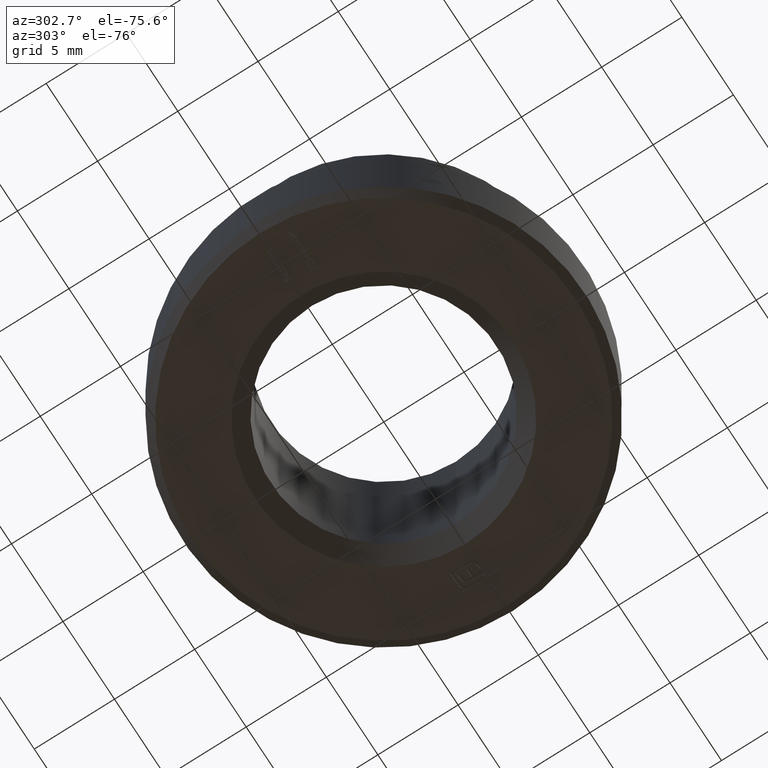
[diagram: clean part render]
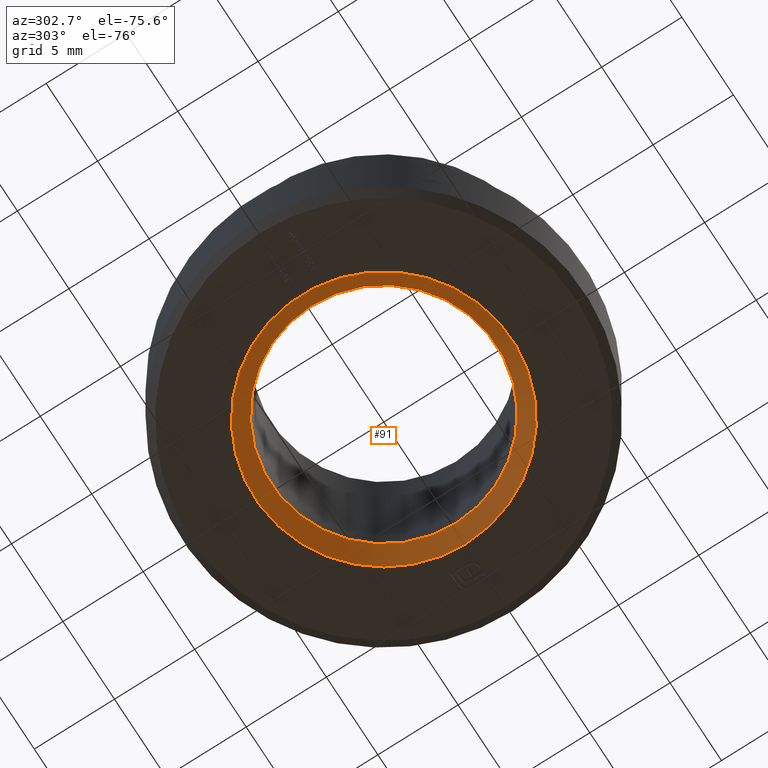
[diagram: same view with one face highlighted and labeled with its STEP entity id]
A machine part, auxiliary view. The second image highlights one B-rep face of the part: STEP entity #91.
In plain terms, the highlighted conical surface has half-angle 45 deg.
Its self-contained STEP definition (entity closure, byte-faithful):
#83 = CARTESIAN_POINT ( 'NONE',  ( 6.999999999999995559, 0.000000000000000000, -6.499999999999995559 ) ) ;
#91 = ADVANCED_FACE ( 'NONE', ( #11294, #8589 ), #3491, .F. ) ;
#371 = AXIS2_PLACEMENT_3D ( 'NONE', #7173, #10080, #8021 ) ;
#1986 = EDGE_LOOP ( 'NONE', ( #10348 ) ) ;
#2184 = DIRECTION ( 'NONE',  ( -0.000000000000000000, -0.000000000000000000, 1.000000000000000000 ) ) ;
#2743 = AXIS2_PLACEMENT_3D ( 'NONE', #6627, #9618, #12764 ) ;
#2935 = AXIS2_PLACEMENT_3D ( 'NONE', #11392, #2184, #4242 ) ;
#3096 = CIRCLE ( 'NONE', #2935, 7.999999999999996447 ) ;
#3491 = CONICAL_SURFACE ( 'NONE', #2743, 7.999999999999996447, 0.7853981633974466137 ) ;
#4122 = EDGE_CURVE ( 'NONE', #11307, #11307, #3096, .T. ) ;
#4242 = DIRECTION ( 'NONE',  ( 1.000000000000000000, 0.000000000000000000, 0.000000000000000000 ) ) ;
#5152 = CARTESIAN_POINT ( 'NONE',  ( 7.999999999999996447, 0.000000000000000000, -7.500000000000000000 ) ) ;
#6627 = CARTESIAN_POINT ( 'NONE',  ( 0.000000000000000000, 0.000000000000000000, -7.500000000000000000 ) ) ;
#7173 = CARTESIAN_POINT ( 'NONE',  ( 0.000000000000000000, 0.000000000000000000, -6.499999999999995559 ) ) ;
#7588 = EDGE_CURVE ( 'NONE', #11938, #11938, #12904, .T. ) ;
#7940 = EDGE_LOOP ( 'NONE', ( #11935 ) ) ;
#8021 = DIRECTION ( 'NONE',  ( 1.000000000000000000, 0.000000000000000000, 0.000000000000000000 ) ) ;
#8589 = FACE_OUTER_BOUND ( 'NONE', #7940, .T. ) ;
#9618 = DIRECTION ( 'NONE',  ( -0.000000000000000000, -0.000000000000000000, -1.000000000000000000 ) ) ;
#10080 = DIRECTION ( 'NONE',  ( -0.000000000000000000, -0.000000000000000000, -1.000000000000000000 ) ) ;
#10348 = ORIENTED_EDGE ( 'NONE', *, *, #7588, .F. ) ;
#11294 = FACE_BOUND ( 'NONE', #1986, .T. ) ;
#11307 = VERTEX_POINT ( 'NONE', #5152 ) ;
#11392 = CARTESIAN_POINT ( 'NONE',  ( 0.000000000000000000, 0.000000000000000000, -7.500000000000000000 ) ) ;
#11935 = ORIENTED_EDGE ( 'NONE', *, *, #4122, .F. ) ;
#11938 = VERTEX_POINT ( 'NONE', #83 ) ;
#12764 = DIRECTION ( 'NONE',  ( -1.000000000000000000, 0.000000000000000000, 0.000000000000000000 ) ) ;
#12904 = CIRCLE ( 'NONE', #371, 6.999999999999995559 ) ;